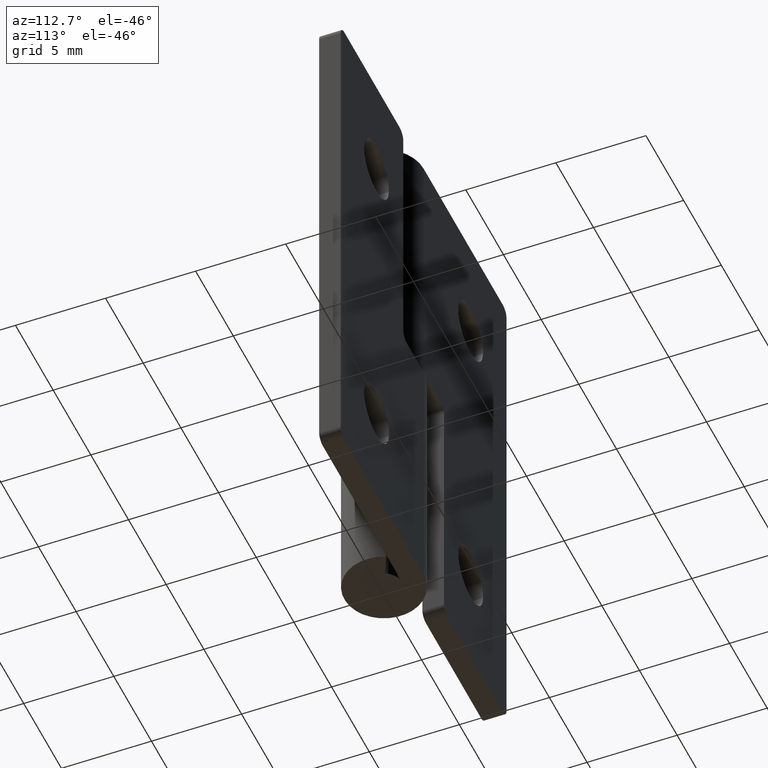
[diagram: clean part render]
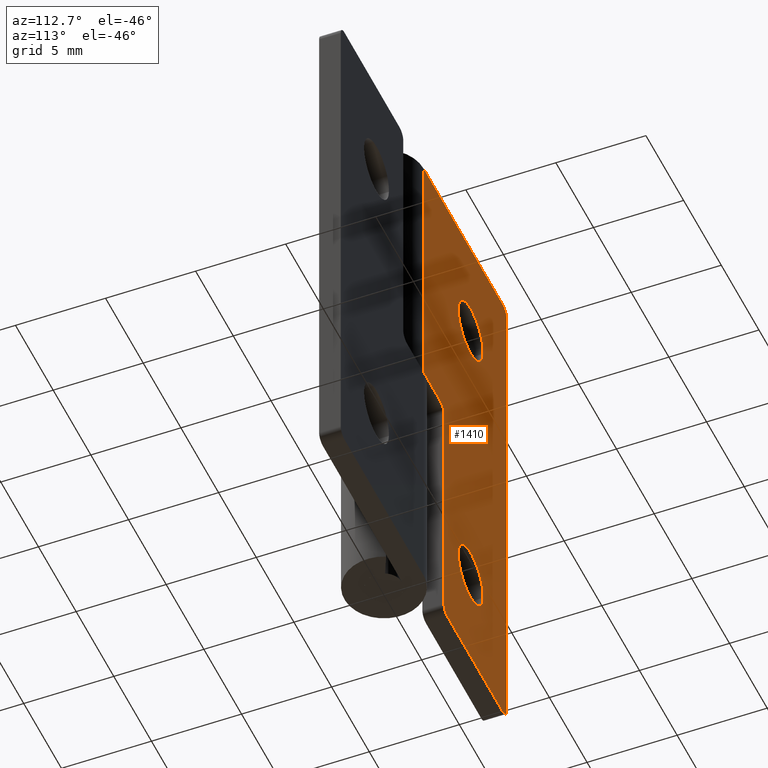
[diagram: same view with one face highlighted and labeled with its STEP entity id]
A machine part, auxiliary view. The second image highlights one B-rep face of the part: STEP entity #1410.
In plain terms, the highlighted face is a freeform B-spline surface patch.
Its self-contained STEP definition (entity closure, byte-faithful):
#478=CARTESIAN_POINT('',(-4.611533959151226,2.200001001358030,24.194753775259642));
#479=VERTEX_POINT('',#478);
#485=CARTESIAN_POINT('',(-6.250000000000000,2.200001001358030,22.350000000000001));
#486=VERTEX_POINT('',#485);
#487=CARTESIAN_POINT('',(-4.611533959151226,2.200001001358029,24.194753775259645));
#488=CARTESIAN_POINT('',(-4.600000000000000,2.200001001358031,24.097718427128928));
#489=CARTESIAN_POINT('',(-4.600000000000000,2.200001001358030,24.0));
#490=CARTESIAN_POINT('',(-4.599999999999999,2.200001001358030,22.350000000000001));
#491=CARTESIAN_POINT('',(-6.250000000000000,2.200001001358030,22.350000000000001));
#499=(BOUNDED_CURVE()B_SPLINE_CURVE(2,(#487,#488,#489,#490,#491),.UNSPECIFIED.,.F.,.U.)B_SPLINE_CURVE_WITH_KNOTS((3,2,3),(0.229562753243202,0.250000000000000,0.500000000000000),.UNSPECIFIED.)CURVE()GEOMETRIC_REPRESENTATION_ITEM()RATIONAL_B_SPLINE_CURVE((0.956027302466079,0.976056276054866,1.0,0.707106781186548,1.0))REPRESENTATION_ITEM(''));
#500=EDGE_CURVE('',#479,#486,#499,.T.);
#502=CARTESIAN_POINT('',(-7.896922417392382,2.200001001358030,23.899269909707009));
#503=VERTEX_POINT('',#502);
#504=CARTESIAN_POINT('',(-6.250000000000000,2.200001001358030,22.350000000000001));
#505=CARTESIAN_POINT('',(-7.802165010280180,2.200001001358031,22.350000000000001));
#506=CARTESIAN_POINT('',(-7.896922417392382,2.200001001358031,23.899269909707009));
#514=(BOUNDED_CURVE()B_SPLINE_CURVE(2,(#504,#505,#506),.UNSPECIFIED.,.F.,.U.)B_SPLINE_CURVE_WITH_KNOTS((3,3),(0.500000000000000,0.739332962229295),.UNSPECIFIED.)CURVE()GEOMETRIC_REPRESENTATION_ITEM()RATIONAL_B_SPLINE_CURVE((1.0,0.719603993298013,0.976072041646040))REPRESENTATION_ITEM(''));
#515=EDGE_CURVE('',#486,#503,#514,.T.);
#593=CARTESIAN_POINT('',(-6.250000000000000,2.200001001358030,25.649999999999999));
#594=VERTEX_POINT('',#593);
#595=CARTESIAN_POINT('',(-7.896922417392382,2.200001001358030,23.899269909707009));
#596=CARTESIAN_POINT('',(-7.900000000000000,2.200001001358031,23.949587940496684));
#597=CARTESIAN_POINT('',(-7.900000000000000,2.200001001358030,24.0));
#598=CARTESIAN_POINT('',(-7.900000000000000,2.200001001358030,25.650000000000006));
#599=CARTESIAN_POINT('',(-6.250000000000000,2.200001001358030,25.649999999999999));
#607=(BOUNDED_CURVE()B_SPLINE_CURVE(2,(#595,#596,#597,#598,#599),.UNSPECIFIED.,.F.,.U.)B_SPLINE_CURVE_WITH_KNOTS((3,2,3),(0.739332962229296,0.750000000000000,1.0),.UNSPECIFIED.)CURVE()GEOMETRIC_REPRESENTATION_ITEM()RATIONAL_B_SPLINE_CURVE((0.976072041646042,0.987502787888535,1.0,0.707106781186548,1.0))REPRESENTATION_ITEM(''));
#608=EDGE_CURVE('',#503,#594,#607,.T.);
#610=CARTESIAN_POINT('',(-6.250000000000000,2.200001001358030,25.649999999999999));
#611=CARTESIAN_POINT('',(-4.784509589485300,2.200001001358031,25.650000000000002));
#612=CARTESIAN_POINT('',(-4.611533959151226,2.200001001358029,24.194753775259645));
#620=(BOUNDED_CURVE()B_SPLINE_CURVE(2,(#610,#611,#612),.UNSPECIFIED.,.F.,.U.)B_SPLINE_CURVE_WITH_KNOTS((3,3),(0.0,0.229562753243202),.UNSPECIFIED.)CURVE()GEOMETRIC_REPRESENTATION_ITEM()RATIONAL_B_SPLINE_CURVE((1.0,0.731050505131681,0.956027302466079))REPRESENTATION_ITEM(''));
#621=EDGE_CURVE('',#594,#479,#620,.T.);
#668=CARTESIAN_POINT('',(-4.611533959151226,2.200001001358030,6.194753775259648));
#669=VERTEX_POINT('',#668);
#675=CARTESIAN_POINT('',(-6.250000000000000,2.200001001358030,4.350000000000000));
#676=VERTEX_POINT('',#675);
#677=CARTESIAN_POINT('',(-4.611533959151226,2.200001001358031,6.194753775259648));
#678=CARTESIAN_POINT('',(-4.600000000000000,2.200001001358030,6.097718427128929));
#679=CARTESIAN_POINT('',(-4.600000000000000,2.200001001358030,6.0));
#680=CARTESIAN_POINT('',(-4.599999999999999,2.200001001358030,4.350000000000000));
#681=CARTESIAN_POINT('',(-6.250000000000000,2.200001001358030,4.350000000000000));
#689=(BOUNDED_CURVE()B_SPLINE_CURVE(2,(#677,#678,#679,#680,#681),.UNSPECIFIED.,.F.,.U.)B_SPLINE_CURVE_WITH_KNOTS((3,2,3),(0.229562753243201,0.250000000000000,0.500000000000000),.UNSPECIFIED.)CURVE()GEOMETRIC_REPRESENTATION_ITEM()RATIONAL_B_SPLINE_CURVE((0.956027302466078,0.976056276054865,1.0,0.707106781186548,1.0))REPRESENTATION_ITEM(''));
#690=EDGE_CURVE('',#669,#676,#689,.T.);
#692=CARTESIAN_POINT('',(-7.896922417392382,2.200001001358030,5.899269909707009));
#693=VERTEX_POINT('',#692);
#694=CARTESIAN_POINT('',(-6.250000000000000,2.200001001358030,4.350000000000000));
#695=CARTESIAN_POINT('',(-7.802165010280180,2.200001001358031,4.350000000000001));
#696=CARTESIAN_POINT('',(-7.896922417392382,2.200001001358031,5.899269909707009));
#704=(BOUNDED_CURVE()B_SPLINE_CURVE(2,(#694,#695,#696),.UNSPECIFIED.,.F.,.U.)B_SPLINE_CURVE_WITH_KNOTS((3,3),(0.500000000000000,0.739332962229295),.UNSPECIFIED.)CURVE()GEOMETRIC_REPRESENTATION_ITEM()RATIONAL_B_SPLINE_CURVE((1.0,0.719603993298013,0.976072041646040))REPRESENTATION_ITEM(''));
#705=EDGE_CURVE('',#676,#693,#704,.T.);
#783=CARTESIAN_POINT('',(-6.250000000000000,2.200001001358030,7.650000000000000));
#784=VERTEX_POINT('',#783);
#785=CARTESIAN_POINT('',(-7.896922417392382,2.200001001358030,5.899269909707009));
#786=CARTESIAN_POINT('',(-7.900000000000000,2.200001001358031,5.949587940496682));
#787=CARTESIAN_POINT('',(-7.900000000000000,2.200001001358030,6.0));
#788=CARTESIAN_POINT('',(-7.900000000000000,2.200001001358030,7.650000000000000));
#789=CARTESIAN_POINT('',(-6.250000000000000,2.200001001358030,7.650000000000000));
#797=(BOUNDED_CURVE()B_SPLINE_CURVE(2,(#785,#786,#787,#788,#789),.UNSPECIFIED.,.F.,.U.)B_SPLINE_CURVE_WITH_KNOTS((3,2,3),(0.739332962229296,0.750000000000000,1.0),.UNSPECIFIED.)CURVE()GEOMETRIC_REPRESENTATION_ITEM()RATIONAL_B_SPLINE_CURVE((0.976072041646042,0.987502787888535,1.0,0.707106781186548,1.0))REPRESENTATION_ITEM(''));
#798=EDGE_CURVE('',#693,#784,#797,.T.);
#800=CARTESIAN_POINT('',(-6.250000000000000,2.200001001358030,7.650000000000000));
#801=CARTESIAN_POINT('',(-4.784509589485308,2.200001001358030,7.650000000000000));
#802=CARTESIAN_POINT('',(-4.611533959151226,2.200001001358031,6.194753775259648));
#810=(BOUNDED_CURVE()B_SPLINE_CURVE(2,(#800,#801,#802),.UNSPECIFIED.,.F.,.U.)B_SPLINE_CURVE_WITH_KNOTS((3,3),(0.0,0.229562753243201),.UNSPECIFIED.)CURVE()GEOMETRIC_REPRESENTATION_ITEM()RATIONAL_B_SPLINE_CURVE((1.0,0.731050505131682,0.956027302466078))REPRESENTATION_ITEM(''));
#811=EDGE_CURVE('',#784,#669,#810,.T.);
#850=CARTESIAN_POINT('',(-2.699997000000000,2.200000999999950,14.499999956366761));
#851=VERTEX_POINT('',#850);
#857=CARTESIAN_POINT('',(-2.199997000000000,2.200000999999950,15.0));
#858=VERTEX_POINT('',#857);
#859=CARTESIAN_POINT('',(-2.199997000000000,2.200000999999950,15.0));
#860=CARTESIAN_POINT('',(-2.407103793966428,2.200000999999951,14.999999999999998));
#861=CARTESIAN_POINT('',(-2.553550406019954,2.200000999999950,14.853553375166589));
#862=CARTESIAN_POINT('',(-2.699997018073479,2.200000999999951,14.707106750333189));
#863=CARTESIAN_POINT('',(-2.699996999999998,2.200000999999950,14.499999956366761));
#871=(BOUNDED_CURVE()B_SPLINE_CURVE(2,(#859,#860,#861,#862,#863),.UNSPECIFIED.,.F.,.U.)B_SPLINE_CURVE_WITH_KNOTS((3,2,3),(0.0,0.500000000000000,1.0),.UNSPECIFIED.)CURVE()GEOMETRIC_REPRESENTATION_ITEM()RATIONAL_B_SPLINE_CURVE((1.0,0.923879524162427,1.0,0.923879524162427,1.0))REPRESENTATION_ITEM(''));
#872=EDGE_CURVE('',#858,#851,#871,.T.);
#894=CARTESIAN_POINT('',(-2.699997000000000,2.200000999999950,0.500000000000014));
#895=VERTEX_POINT('',#894);
#901=CARTESIAN_POINT('',(-2.699997000000000,2.200000999999950,14.499999956366761));
#902=CARTESIAN_POINT('',(-2.699997000000000,2.200000999999950,0.500000000000014));
#903=QUASI_UNIFORM_CURVE('',1,(#901,#902),.UNSPECIFIED.,.F.,.U.);
#904=EDGE_CURVE('',#851,#895,#903,.T.);
#917=CARTESIAN_POINT('',(0.0,2.200001000000000,15.0));
#918=VERTEX_POINT('',#917);
#972=CARTESIAN_POINT('',(0.0,2.200001000000000,15.0));
#973=CARTESIAN_POINT('',(-2.199997000000000,2.200000999999950,15.0));
#974=QUASI_UNIFORM_CURVE('',1,(#972,#973),.UNSPECIFIED.,.F.,.U.);
#975=EDGE_CURVE('',#918,#858,#974,.T.);
#1011=CARTESIAN_POINT('',(-10.500000000000000,2.200000999999950,30.0));
#1012=VERTEX_POINT('',#1011);
#1018=CARTESIAN_POINT('',(-11.0,2.200000999999950,29.500000000000000));
#1019=VERTEX_POINT('',#1018);
#1020=CARTESIAN_POINT('',(-10.500000000000000,2.200000999999950,30.0));
#1021=CARTESIAN_POINT('',(-11.000000000000002,2.200000999999951,30.000000000000004));
#1022=CARTESIAN_POINT('',(-11.0,2.200000999999950,29.500000000000000));
#1030=(BOUNDED_CURVE()B_SPLINE_CURVE(2,(#1020,#1021,#1022),.UNSPECIFIED.,.F.,.U.)CURVE()GEOMETRIC_REPRESENTATION_ITEM()QUASI_UNIFORM_CURVE()RATIONAL_B_SPLINE_CURVE((1.0,0.707106781186548,1.0))REPRESENTATION_ITEM(''));
#1031=EDGE_CURVE('',#1012,#1019,#1030,.T.);
#1072=CARTESIAN_POINT('',(-11.0,2.200000999999950,0.500000000000014));
#1073=VERTEX_POINT('',#1072);
#1079=CARTESIAN_POINT('',(-10.500000000000000,2.200001000000000,0.0));
#1080=VERTEX_POINT('',#1079);
#1081=CARTESIAN_POINT('',(-11.0,2.200000999999950,0.500000000000014));
#1082=CARTESIAN_POINT('',(-11.000000000000002,2.200000999999951,1.398621E-014));
#1083=CARTESIAN_POINT('',(-10.500000000000000,2.200001000000000,0.0));
#1091=(BOUNDED_CURVE()B_SPLINE_CURVE(2,(#1081,#1082,#1083),.UNSPECIFIED.,.F.,.U.)CURVE()GEOMETRIC_REPRESENTATION_ITEM()QUASI_UNIFORM_CURVE()RATIONAL_B_SPLINE_CURVE((1.0,0.707106781186548,1.0))REPRESENTATION_ITEM(''));
#1092=EDGE_CURVE('',#1073,#1080,#1091,.T.);
#1131=CARTESIAN_POINT('',(-3.199997000000000,2.200000999999950,0.0));
#1132=VERTEX_POINT('',#1131);
#1138=CARTESIAN_POINT('',(-3.199997000000000,2.200000999999950,0.0));
#1139=CARTESIAN_POINT('',(-2.699997000000000,2.200000999999951,1.398621E-014));
#1140=CARTESIAN_POINT('',(-2.699997000000000,2.200000999999950,0.500000000000014));
#1148=(BOUNDED_CURVE()B_SPLINE_CURVE(2,(#1138,#1139,#1140),.UNSPECIFIED.,.F.,.U.)CURVE()GEOMETRIC_REPRESENTATION_ITEM()QUASI_UNIFORM_CURVE()RATIONAL_B_SPLINE_CURVE((1.0,0.707106781186548,1.0))REPRESENTATION_ITEM(''));
#1149=EDGE_CURVE('',#1132,#895,#1148,.T.);
#1244=CARTESIAN_POINT('',(-0.000000115191736,2.200000000000000,30.0));
#1245=VERTEX_POINT('',#1244);
#1246=CARTESIAN_POINT('',(0.0,2.200001000000000,15.0));
#1247=CARTESIAN_POINT('',(-0.000000115191736,2.200000000000000,30.0));
#1248=QUASI_UNIFORM_CURVE('',1,(#1246,#1247),.UNSPECIFIED.,.F.,.U.);
#1249=EDGE_CURVE('',#918,#1245,#1248,.T.);
#1300=CARTESIAN_POINT('',(-3.199997000000000,2.200000999999950,0.0));
#1301=CARTESIAN_POINT('',(-10.500000000000000,2.200001000000000,0.0));
#1302=QUASI_UNIFORM_CURVE('',1,(#1300,#1301),.UNSPECIFIED.,.F.,.U.);
#1303=EDGE_CURVE('',#1132,#1080,#1302,.T.);
#1315=CARTESIAN_POINT('',(-11.0,2.200000999999950,0.500000000000014));
#1316=CARTESIAN_POINT('',(-11.0,2.200000999999950,29.500000000000000));
#1317=QUASI_UNIFORM_CURVE('',1,(#1315,#1316),.UNSPECIFIED.,.F.,.U.);
#1318=EDGE_CURVE('',#1073,#1019,#1317,.T.);
#1343=CARTESIAN_POINT('',(-0.000000115191736,2.200000000000000,30.0));
#1344=CARTESIAN_POINT('',(-10.500000000000000,2.200000999999950,30.0));
#1345=QUASI_UNIFORM_CURVE('',1,(#1343,#1344),.UNSPECIFIED.,.F.,.U.);
#1346=EDGE_CURVE('',#1245,#1012,#1345,.T.);
#1381=CARTESIAN_POINT('',(-11.549449978679871,2.200001000000000,-1.498499941854179));
#1382=CARTESIAN_POINT('',(-11.549449978679860,2.200001000000000,31.498500746516889));
#1383=CARTESIAN_POINT('',(0.549450273722857,2.200001000000000,-1.498499941854179));
#1384=CARTESIAN_POINT('',(0.549450273722857,2.200001000000000,31.498500746516889));
#1385=B_SPLINE_SURFACE_WITH_KNOTS('',1,1,((#1381,#1383),(#1382,#1384)),.UNSPECIFIED.,.F.,.F.,.U.,(2,2),(2,2),(0.0,32.997000688371067),(0.0,12.098900252402720),.UNSPECIFIED.);
#1386=ORIENTED_EDGE('',*,*,#975,.T.);
#1387=ORIENTED_EDGE('',*,*,#872,.T.);
#1388=ORIENTED_EDGE('',*,*,#904,.T.);
#1389=ORIENTED_EDGE('',*,*,#1149,.F.);
#1390=ORIENTED_EDGE('',*,*,#1303,.T.);
#1391=ORIENTED_EDGE('',*,*,#1092,.F.);
#1392=ORIENTED_EDGE('',*,*,#1318,.T.);
#1393=ORIENTED_EDGE('',*,*,#1031,.F.);
#1394=ORIENTED_EDGE('',*,*,#1346,.F.);
#1395=ORIENTED_EDGE('',*,*,#1249,.F.);
#1396=EDGE_LOOP('',(#1386,#1387,#1388,#1389,#1390,#1391,#1392,#1393,#1394,#1395));
#1397=FACE_OUTER_BOUND('',#1396,.T.);
#1398=ORIENTED_EDGE('',*,*,#705,.F.);
#1399=ORIENTED_EDGE('',*,*,#690,.F.);
#1400=ORIENTED_EDGE('',*,*,#811,.F.);
#1401=ORIENTED_EDGE('',*,*,#798,.F.);
#1402=EDGE_LOOP('',(#1398,#1399,#1400,#1401));
#1403=FACE_BOUND('',#1402,.T.);
#1404=ORIENTED_EDGE('',*,*,#515,.F.);
#1405=ORIENTED_EDGE('',*,*,#500,.F.);
#1406=ORIENTED_EDGE('',*,*,#621,.F.);
#1407=ORIENTED_EDGE('',*,*,#608,.F.);
#1408=EDGE_LOOP('',(#1404,#1405,#1406,#1407));
#1409=FACE_BOUND('',#1408,.T.);
#1410=ADVANCED_FACE('',(#1397,#1403,#1409),#1385,.T.);